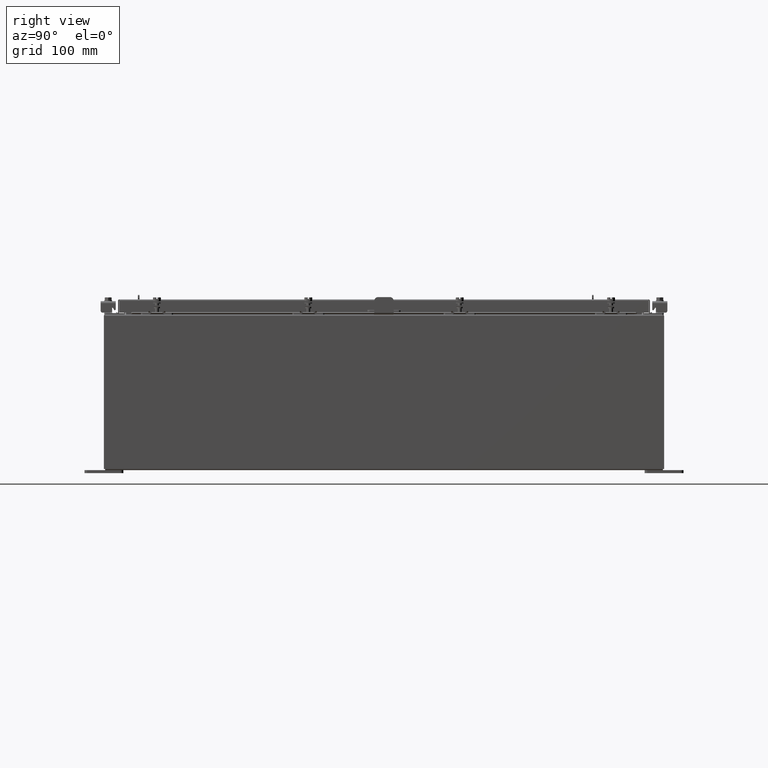
[diagram: clean part render]
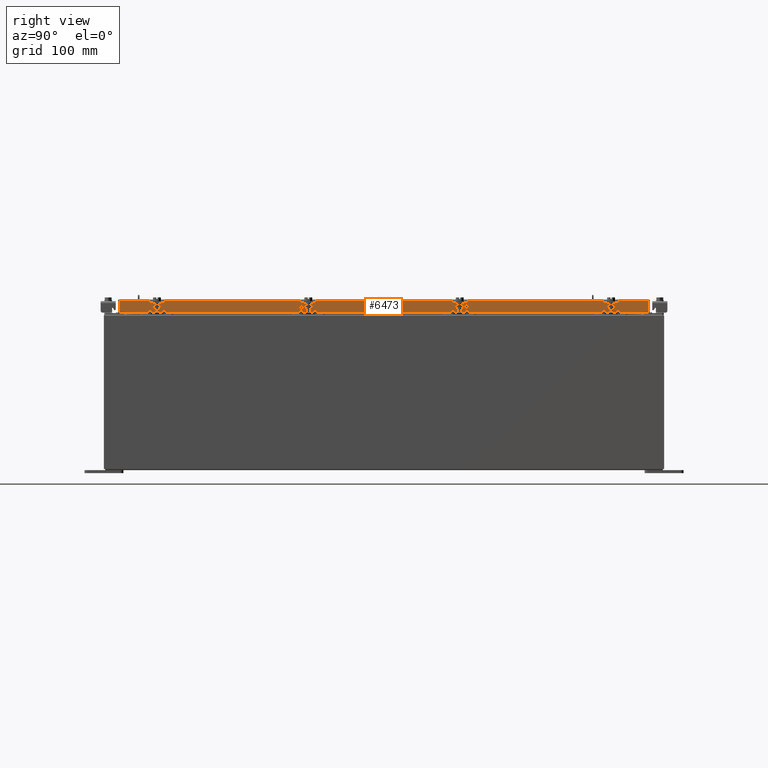
[diagram: same view with one face highlighted and labeled with its STEP entity id]
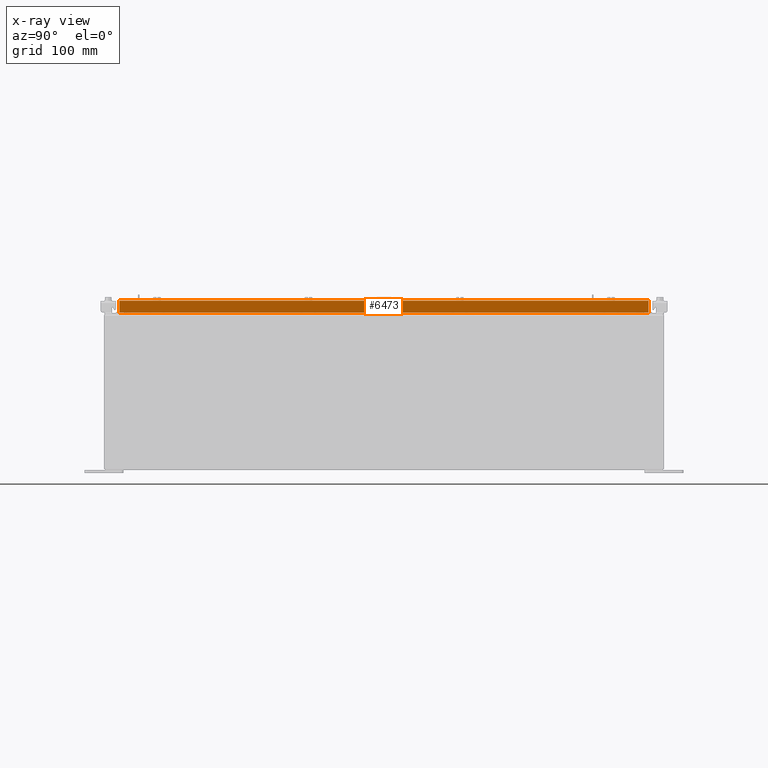
[diagram: x-ray of the same camera — body ghosted, the highlighted face saturated]
A machine part, right view. The second image highlights one B-rep face of the part: STEP entity #6473.
The next image is the same camera in x-ray: the body ghosted, the highlighted face saturated — about 0% of this face is hidden behind the body in this view.
In plain terms, the highlighted planar face has unit normal (1, 0, 0).
Its self-contained STEP definition (entity closure, byte-faithful):
#262 = EDGE_CURVE ( 'NONE', #21474, #4622, #11080, .T. ) ;
#1161 = CARTESIAN_POINT ( 'NONE',  ( 11.07799999999999800, 17.00515786437626500, -0.08770000000000115200 ) ) ;
#1687 = DIRECTION ( 'NONE',  ( 2.818880942772360100E-015, 0.0000000000000000000, -1.000000000000000000 ) ) ;
#2296 = VECTOR ( 'NONE', #8227, 39.37007874015748100 ) ;
#2360 = ORIENTED_EDGE ( 'NONE', *, *, #262, .F. ) ;
#2464 = VECTOR ( 'NONE', #14378, 39.37007874015748100 ) ;
#3522 = CARTESIAN_POINT ( 'NONE',  ( 11.07799999999999900, -17.09400000000000100, -0.8499999999999996400 ) ) ;
#3538 = LINE ( 'NONE', #3522, #8913 ) ;
#4004 = VERTEX_POINT ( 'NONE', #1161 ) ;
#4157 = CARTESIAN_POINT ( 'NONE',  ( 11.07799999999999200, 16.25515786437627200, -0.8500000000000020900 ) ) ;
#4499 = VECTOR ( 'NONE', #12421, 39.37007874015748100 ) ;
#4588 = CARTESIAN_POINT ( 'NONE',  ( 11.07799999999999800, 5.606249421889436000E-018, -0.08770000000000115200 ) ) ;
#4622 = VERTEX_POINT ( 'NONE', #16402 ) ;
#4790 = EDGE_CURVE ( 'NONE', #10666, #7895, #6718, .T. ) ;
#5081 = LINE ( 'NONE', #8760, #4499 ) ;
#6012 = DIRECTION ( 'NONE',  ( 0.0000000000000000000, -1.000000000000000000, 0.0000000000000000000 ) ) ;
#6241 = VECTOR ( 'NONE', #11387, 39.37007874015748100 ) ;
#6473 = ADVANCED_FACE ( 'NONE', ( #7567 ), #21472, .T. ) ;
#6718 = LINE ( 'NONE', #7162, #2464 ) ;
#7162 = CARTESIAN_POINT ( 'NONE',  ( 11.07799999999999800, -17.00515786437626900, -0.07469999999999978000 ) ) ;
#7567 = FACE_OUTER_BOUND ( 'NONE', #19136, .T. ) ;
#7596 = ORIENTED_EDGE ( 'NONE', *, *, #4790, .F. ) ;
#7815 = CARTESIAN_POINT ( 'NONE',  ( 11.07799999999999900, -17.09400000000000100, -0.8499999999999996400 ) ) ;
#7895 = VERTEX_POINT ( 'NONE', #18671 ) ;
#7954 = ORIENTED_EDGE ( 'NONE', *, *, #13637, .F. ) ;
#8227 = DIRECTION ( 'NONE',  ( 1.801978295984813200E-031, -1.000000000000000000, -6.392530697705073700E-017 ) ) ;
#8760 = CARTESIAN_POINT ( 'NONE',  ( 11.07799999999999800, 17.00515786437626900, 1.502347594351463900E-013 ) ) ;
#8913 = VECTOR ( 'NONE', #14376, 39.37007874015748100 ) ;
#9215 = VECTOR ( 'NONE', #6012, 39.37007874015748100 ) ;
#9470 = EDGE_CURVE ( 'NONE', #12256, #21474, #3538, .T. ) ;
#10666 = VERTEX_POINT ( 'NONE', #13920 ) ;
#11080 = LINE ( 'NONE', #14934, #6241 ) ;
#11387 = DIRECTION ( 'NONE',  ( 0.0000000000000000000, -1.000000000000000000, 0.0000000000000000000 ) ) ;
#12256 = VERTEX_POINT ( 'NONE', #16459 ) ;
#12421 = DIRECTION ( 'NONE',  ( -2.818880942772360500E-015, -6.982962677686269100E-015, 1.000000000000000000 ) ) ;
#12455 = CARTESIAN_POINT ( 'NONE',  ( 11.07799999999999800, 0.0000000000000000000, 3.148837674004378400E-014 ) ) ;
#12527 = DIRECTION ( 'NONE',  ( 1.000000000000000000, 0.0000000000000000000, 2.818880942772360100E-015 ) ) ;
#12530 = EDGE_CURVE ( 'NONE', #4004, #7895, #21510, .T. ) ;
#13637 = EDGE_CURVE ( 'NONE', #4622, #10666, #14614, .T. ) ;
#13920 = CARTESIAN_POINT ( 'NONE',  ( 11.07799999999999900, -17.00515786437626500, -0.8499999999999996400 ) ) ;
#14376 = DIRECTION ( 'NONE',  ( 0.0000000000000000000, -1.000000000000000000, 0.0000000000000000000 ) ) ;
#14378 = DIRECTION ( 'NONE',  ( -2.818880942772360500E-015, -6.982962677686269100E-015, 1.000000000000000000 ) ) ;
#14614 = LINE ( 'NONE', #7815, #9215 ) ;
#14934 = CARTESIAN_POINT ( 'NONE',  ( 11.07799999999999200, 16.25515786437627200, -0.8500000000000020900 ) ) ;
#15049 = ORIENTED_EDGE ( 'NONE', *, *, #12530, .T. ) ;
#15688 = ORIENTED_EDGE ( 'NONE', *, *, #9470, .F. ) ;
#16402 = CARTESIAN_POINT ( 'NONE',  ( 11.07799999999999200, -16.25515786437626500, -0.8500000000000020900 ) ) ;
#16459 = CARTESIAN_POINT ( 'NONE',  ( 11.07799999999999900, 17.00515786437627600, -0.8499999999999996400 ) ) ;
#17380 = EDGE_CURVE ( 'NONE', #12256, #4004, #5081, .T. ) ;
#18671 = CARTESIAN_POINT ( 'NONE',  ( 11.07799999999999800, -17.00515786437626900, -0.08770000000000224800 ) ) ;
#19136 = EDGE_LOOP ( 'NONE', ( #7596, #7954, #2360, #15688, #19846, #15049 ) ) ;
#19846 = ORIENTED_EDGE ( 'NONE', *, *, #17380, .T. ) ;
#20138 = AXIS2_PLACEMENT_3D ( 'NONE', #12455, #12527, #1687 ) ;
#21472 = PLANE ( 'NONE',  #20138 ) ;
#21474 = VERTEX_POINT ( 'NONE', #4157 ) ;
#21510 = LINE ( 'NONE', #4588, #2296 ) ;